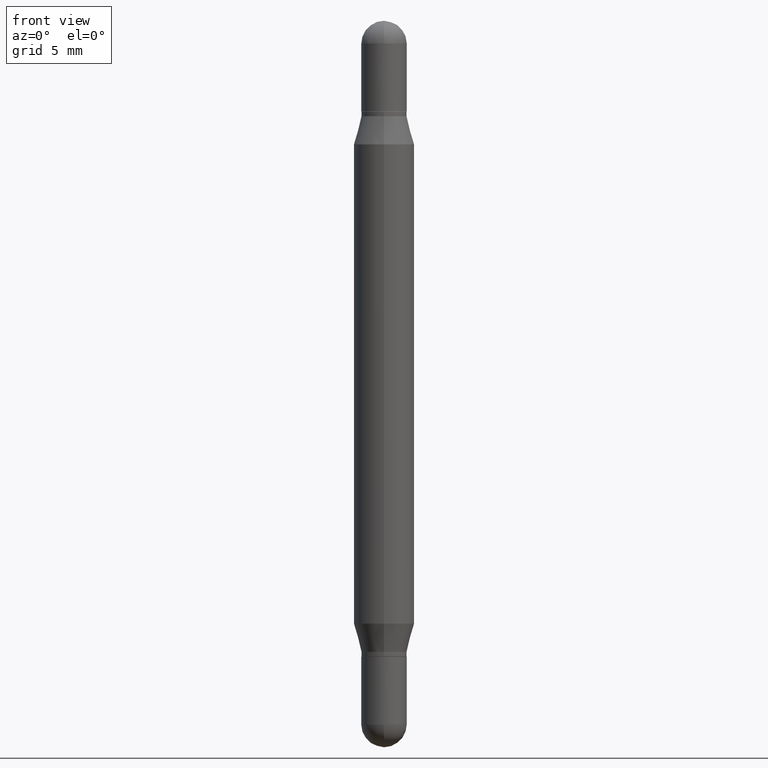
[diagram: clean part render]
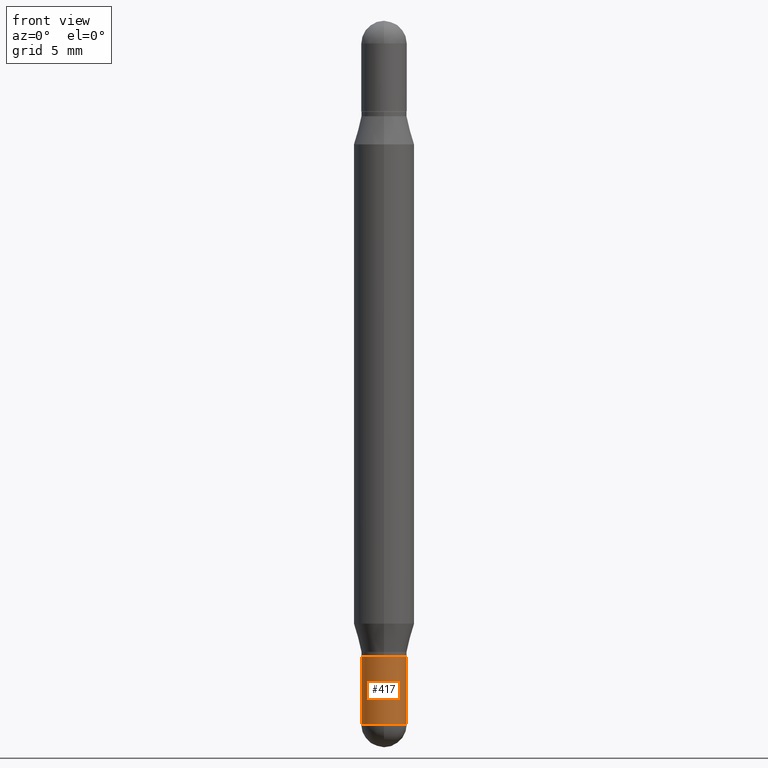
[diagram: same view with one face highlighted and labeled with its STEP entity id]
A machine part, front view. The second image highlights one B-rep face of the part: STEP entity #417.
In plain terms, the highlighted cylindrical surface (edge-blend (fillet) strip) has radius 1.1913 mm, axis along (-0, 0, 1).
Its self-contained STEP definition (entity closure, byte-faithful):
#1 = ORIENTED_EDGE ( 'NONE', *, *, #686, .T. ) ;
#39 = CARTESIAN_POINT ( 'NONE',  ( 0.04689999999999999725, -4.911815947484537290E-15, -1.313000000000000167 ) ) ;
#47 = LINE ( 'NONE', #1079, #789 ) ;
#54 = EDGE_CURVE ( 'NONE', #938, #673, #496, .T. ) ;
#76 = DIRECTION ( 'NONE',  ( -2.445468806185136597E-29, 3.491481338843145583E-15, 1.000000000000000000 ) ) ;
#82 = DIRECTION ( 'NONE',  ( -2.445468806185136877E-29, 3.491481338843145188E-15, 1.000000000000000000 ) ) ;
#124 = DIRECTION ( 'NONE',  ( 1.000000000000000000, -6.982962677686277755E-15, 0.000000000000000000 ) ) ;
#175 = EDGE_CURVE ( 'NONE', #305, #945, #994, .T. ) ;
#203 = CARTESIAN_POINT ( 'NONE',  ( -0.04689999999999999725, -4.495648722615525747E-15, -1.453099999999999836 ) ) ;
#210 = EDGE_CURVE ( 'NONE', #305, #938, #663, .T. ) ;
#215 = CARTESIAN_POINT ( 'NONE',  ( 3.553510722267622201E-29, -5.073471533472974042E-15, -1.453099999999999836 ) ) ;
#285 = DIRECTION ( 'NONE',  ( -2.445468806185136597E-29, 3.491481338843145583E-15, 1.000000000000000000 ) ) ;
#305 = VERTEX_POINT ( 'NONE', #203 ) ;
#321 = DIRECTION ( 'NONE',  ( 1.000000000000000000, -6.982962677686277755E-15, 0.000000000000000000 ) ) ;
#332 = VECTOR ( 'NONE', #1017, 39.37007874015748143 ) ;
#353 = CARTESIAN_POINT ( 'NONE',  ( -0.04689999999999999725, -4.495648722615525747E-15, -1.313000000000000167 ) ) ;
#417 = ADVANCED_FACE ( 'NONE', ( #619 ), #444, .T. ) ;
#444 = CYLINDRICAL_SURFACE ( 'NONE', #1032, 0.04689999999999999725 ) ;
#446 = ORIENTED_EDGE ( 'NONE', *, *, #210, .F. ) ;
#483 = CARTESIAN_POINT ( 'NONE',  ( 3.553510722267622201E-29, -5.073471533472974042E-15, -1.453099999999999836 ) ) ;
#496 = CIRCLE ( 'NONE', #515, 0.04689999999999999725 ) ;
#515 = AXIS2_PLACEMENT_3D ( 'NONE', #534, #881, #124 ) ;
#534 = CARTESIAN_POINT ( 'NONE',  ( 3.210900542521084585E-29, -4.584314997901050598E-15, -1.313000000000000167 ) ) ;
#573 = DIRECTION ( 'NONE',  ( 1.000000000000000000, -6.982962677686277755E-15, 0.000000000000000000 ) ) ;
#619 = FACE_OUTER_BOUND ( 'NONE', #700, .T. ) ;
#632 = CIRCLE ( 'NONE', #925, 0.04689999999999999725 ) ;
#641 = DIRECTION ( 'NONE',  ( -2.445468806185136597E-29, 3.491481338843145583E-15, 1.000000000000000000 ) ) ;
#649 = AXIS2_PLACEMENT_3D ( 'NONE', #215, #641, #573 ) ;
#652 = ORIENTED_EDGE ( 'NONE', *, *, #760, .T. ) ;
#663 = LINE ( 'NONE', #933, #332 ) ;
#673 = VERTEX_POINT ( 'NONE', #39 ) ;
#686 = EDGE_CURVE ( 'NONE', #1015, #673, #47, .T. ) ;
#700 = EDGE_LOOP ( 'NONE', ( #446, #741, #652, #1, #808 ) ) ;
#741 = ORIENTED_EDGE ( 'NONE', *, *, #175, .T. ) ;
#760 = EDGE_CURVE ( 'NONE', #945, #1015, #632, .T. ) ;
#789 = VECTOR ( 'NONE', #82, 39.37007874015748143 ) ;
#808 = ORIENTED_EDGE ( 'NONE', *, *, #54, .F. ) ;
#871 = DIRECTION ( 'NONE',  ( 1.000000000000000000, -6.982962677686266711E-15, 4.876176775795936353E-29 ) ) ;
#881 = DIRECTION ( 'NONE',  ( -2.445468806185136597E-29, 3.491481338843145583E-15, 1.000000000000000000 ) ) ;
#896 = CARTESIAN_POINT ( 'NONE',  ( 0.04689999999999999725, -5.156394215270499012E-15, -1.453099999999999836 ) ) ;
#925 = AXIS2_PLACEMENT_3D ( 'NONE', #483, #76, #321 ) ;
#933 = CARTESIAN_POINT ( 'NONE',  ( -0.04689999999999999725, 3.332445430714869676E-16, -2.306980557329550952E-30 ) ) ;
#938 = VERTEX_POINT ( 'NONE', #353 ) ;
#945 = VERTEX_POINT ( 'NONE', #968 ) ;
#968 = CARTESIAN_POINT ( 'NONE',  ( -3.275009495834508474E-16, -0.04690000000000513897, -1.453099999999999614 ) ) ;
#994 = CIRCLE ( 'NONE', #649, 0.04689999999999999725 ) ;
#1015 = VERTEX_POINT ( 'NONE', #896 ) ;
#1017 = DIRECTION ( 'NONE',  ( -2.445468806185136877E-29, 3.491481338843145188E-15, 1.000000000000000000 ) ) ;
#1032 = AXIS2_PLACEMENT_3D ( 'NONE', #1062, #285, #871 ) ;
#1062 = CARTESIAN_POINT ( 'NONE',  ( 0.000000000000000000, 0.000000000000000000, 0.000000000000000000 ) ) ;
#1079 = CARTESIAN_POINT ( 'NONE',  ( 0.04689999999999999725, -3.275009495834859024E-16, 2.286926907848294038E-30 ) ) ;